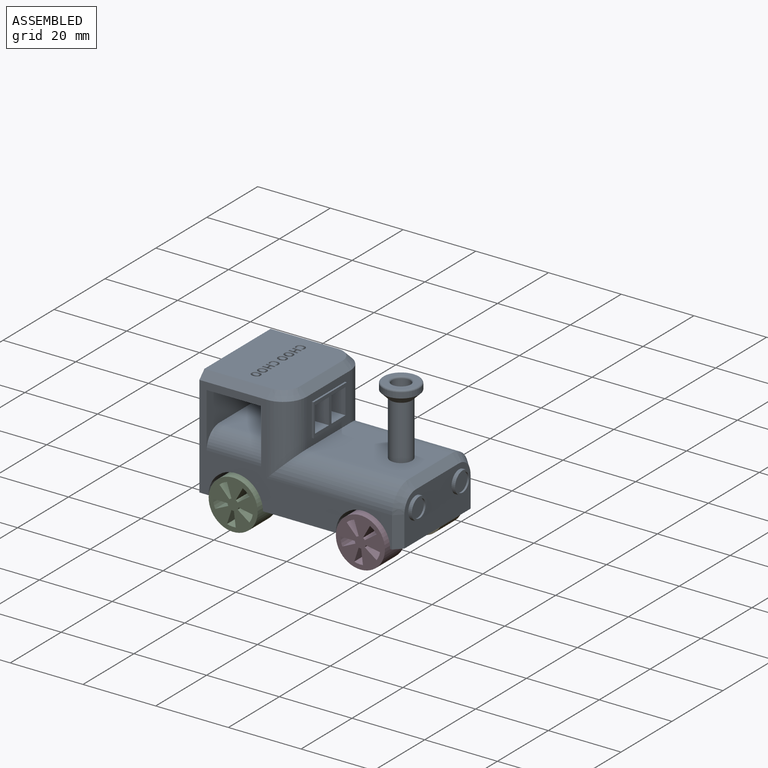
[diagram: assembled view]
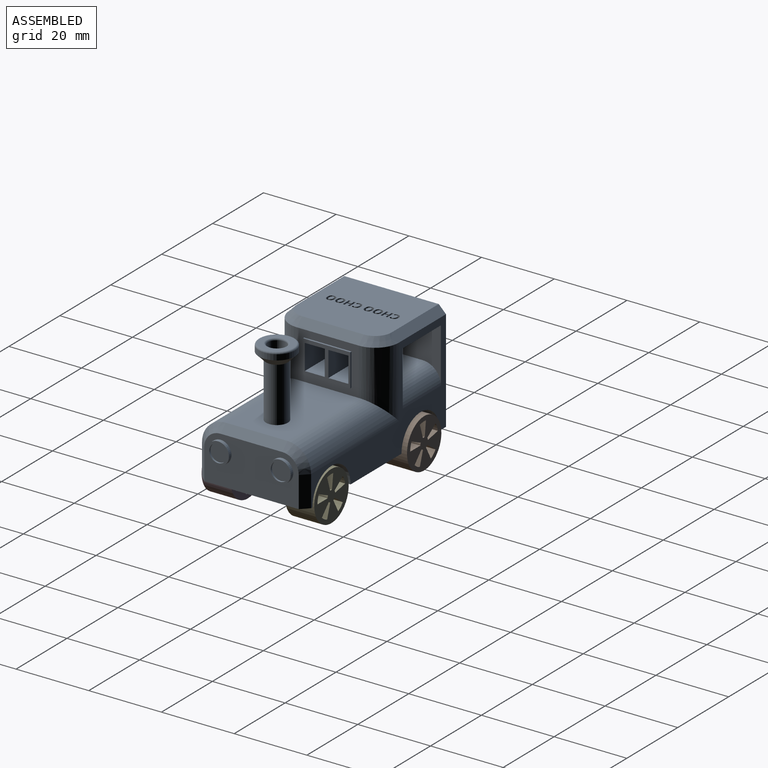
[diagram: assembled view, second angle]
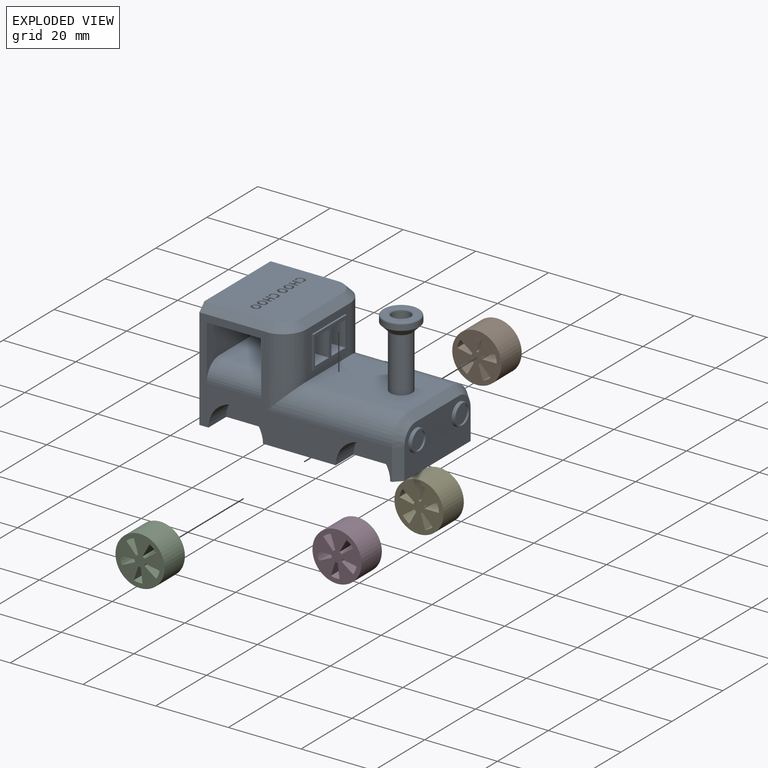
[diagram: exploded view]
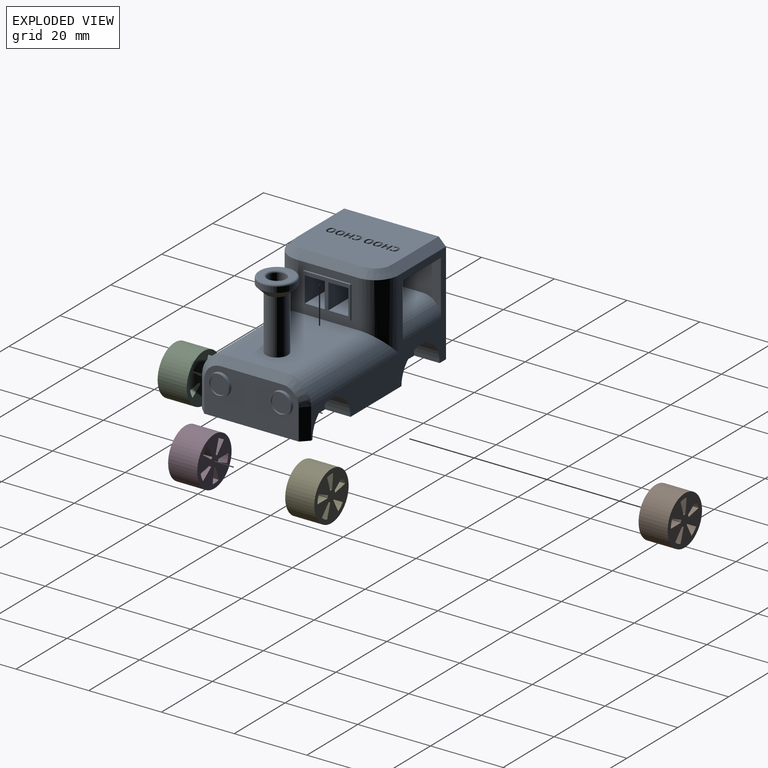
[diagram: exploded view, second angle]
ASSEMBLY  parts=5 mates=4
PART A: 153 faces, bbox 56x30x34 mm
  f0: plane 30x15mm, normal (-1,0,0), area 233.7mm2, adj f3,f4,f31,f33,f34,f35,f135,f136
  f1: plane 17x13mm, normal (1,0,0), area 104mm2, adj f8,f17,f20,f28,f132,f133,f134,f143
  f2: plane 26x23mm, normal (0,0,1), area 562.5mm2, adj f6,f26,f27,f28,f29,f30,f47,f48
  f3: plane 53x28mm, normal (0,-1,0), area 409.5mm2, adj f0,f5,f6,f13,f15,f17,f18,f25
  f4: plane 53x28mm, normal (0,1,0), area 409.5mm2, adj f0,f5,f6,f9,f11,f19,f20,f21
  f5: plane 55x30mm, normal (0,0,-1), area 1226mm2, adj f3,f4,f6,f7,f9,f10,f11,f12
  f6: plane 30x30mm, normal (-1,0,0), area 896mm2, adj f2,f3,f4,f5,f26,f30
  f7: plane 26x13mm, normal (1,0,0), area 272.8mm2, adj f5,f21,f22,f23,f24,f25,f36,f38
  f8: plane 28x17mm, normal (0,0,1), area 447.7mm2, adj f1,f18,f19,f23,f40
  f9: cylinder r=7.5mm len=15mm, axis (0,1,0), area 164.9mm2, adj f4,f5,f10
  f10: plane 15x7.5mm, normal (0,1,0), area 88.4mm2, adj f5,f9
  f11: cylinder r=7.5mm len=15mm, axis (0,1,0), area 164.9mm2, adj f4,f5,f12
  f12: plane 15x7.5mm, normal (0,1,0), area 88.4mm2, adj f5,f11
  f13: cylinder r=7.5mm len=15mm, axis (0,-1,0), area 164.9mm2, adj f3,f5,f14
  f14: plane 15x7.5mm, normal (0,-1,0), area 88.4mm2, adj f5,f13
  f15: cylinder r=7.5mm len=15mm, axis (0,-1,0), area 164.9mm2, adj f3,f5,f16
  f16: plane 15x7.5mm, normal (0,-1,0), area 88.4mm2, adj f5,f15
  f17: cylinder r=6.5mm len=19.5mm, axis (0,0,1), area 156.8mm2, adj f1,f3,f18,f29
  f18: cylinder r=6.5mm len=34.5mm, axis (-1,0,0), area 310mm2, adj f3,f8,f17,f24
  f19: cylinder r=6.5mm len=34.5mm, axis (1,0,0), area 310mm2, adj f4,f8,f20,f22
  f20: cylinder r=6.5mm len=19.5mm, axis (0,0,-1), area 156.8mm2, adj f1,f4,f19,f27
  f21: plane 8.5x2mm, normal (0.71,0.71,0), area 24mm2, adj f4,f5,f7,f22
  f22: cone r=4.5mm half-angle=45deg, axis (-1,0,0), area 24.4mm2, adj f7,f19,f21,f23
  f23: plane 17x2mm, normal (0.71,0,0.71), area 48.1mm2, adj f7,f8,f22,f24
  f24: cone r=4.5mm half-angle=45deg, axis (-1,0,0), area 24.4mm2, adj f7,f18,f23,f25
  f25: plane 8.5x2mm, normal (0.71,-0.71,0), area 24mm2, adj f3,f5,f7,f24
  f26: plane 18.5x2mm, normal (0,0.71,0.71), area 52.3mm2, adj f2,f4,f6,f27
  f27: cone r=4.5mm half-angle=45deg, axis (0,0,-1), area 24.4mm2, adj f2,f20,f26,f28
  f28: plane 17x2mm, normal (0.71,0,0.71), area 48.1mm2, adj f1,f2,f27,f29
  f29: cone r=4.5mm half-angle=45deg, axis (0,0,-1), area 24.4mm2, adj f2,f17,f28,f30
  f30: plane 18.5x2mm, normal (0,-0.71,0.71), area 52.3mm2, adj f2,f3,f6,f29
  f31: plane 20x15mm, normal (0,0,1), area 300mm2, adj f0,f32,f34,f35
  f32: plane 30x15mm, normal (1,0,0), area 310.7mm2, adj f3,f4,f31,f33,f34,f35
  f33: plane 30x15mm, normal (0,0,-1), area 450mm2, adj f0,f3,f4,f32
  f34: cylinder r=5mm len=15mm, axis (-1,0,0), area 117.8mm2, adj f0,f3,f31,f32
  f35: cylinder r=5mm len=15mm, axis (1,0,0), area 117.8mm2, adj f0,f4,f31,f32
  f36: cylinder r=3mm len=6mm, axis (-1,0,0), area 18.8mm2, adj f7,f37
  f37: plane 6x6mm, normal (1,0,0), area 8.6mm2, adj f36,f147
  f38: cylinder r=3mm len=6mm, axis (-1,0,0), area 18.8mm2, adj f7,f39
  f39: plane 6x6mm, normal (1,0,0), area 10mm2, adj f38,f145
  f40: cylinder r=3mm len=15mm, axis (0,0,-1), area 282.7mm2, adj f8,f43
  f41: cylinder r=5mm len=10mm, axis (0,0,-1), area 47.1mm2, adj f43,f152
  f42: plane 9x9mm, normal (0,0,1), area 35.3mm2, adj f151,f152
  f43: cone r=5mm half-angle=45deg, axis (0,0,1), area 71.1mm2, adj f40,f41
  f44: extruded ~2x0.83mm, area 2.3mm2, adj f45,f51,f52,f128
  f45: extruded ~2x0.84mm, area 2.3mm2, adj f44,f46,f52,f128
  f46: extruded ~2x0.84mm, area 2.3mm2, adj f45,f51,f52,f128
  f47: extruded ~2x1.24mm, area 3.7mm2, adj f2,f48,f50,f52
  f48: extruded ~2x1.26mm, area 3.7mm2, adj f2,f47,f49,f52
  f49: extruded ~2x1.26mm, area 3.7mm2, adj f2,f48,f50,f52
  f50: extruded ~2x1.24mm, area 3.7mm2, adj f2,f47,f49,f52
  f51: extruded ~2x0.83mm, area 2.3mm2, adj f44,f46,f52,f128
  f52: plane 2.5x2.16mm, normal (0,0,1), area 2.8mm2, adj f44,f45,f46,f47,f48,f49,f50,f51
  f53: plane 2x0.48mm, normal (-1,0,0), area 1mm2, adj f2,f54,f64,f65
  f54: plane 2.41x2mm, normal (0,-1,0), area 4.8mm2, adj f2,f53,f55,f65
  f55: plane 2x0.48mm, normal (1,0,0), area 1mm2, adj f2,f54,f56,f65
  f56: plane 2x1.04mm, normal (0,1,0), area 2.1mm2, adj f2,f55,f57,f65
  f57: plane 2x0.91mm, normal (1,0,0), area 1.8mm2, adj f2,f56,f58,f65
  f58: plane 2x1.04mm, normal (0,-1,0), area 2.1mm2, adj f2,f57,f59,f65
  f59: plane 2x0.48mm, normal (1,0,0), area 1mm2, adj f2,f58,f60,f65
  f60: plane 2.41x2mm, normal (0,1,0), area 4.8mm2, adj f2,f59,f61,f65
  f61: plane 2x0.48mm, normal (-1,0,0), area 1mm2, adj f2,f60,f62,f65
  f62: plane 2x0.95mm, normal (0,-1,0), area 1.9mm2, adj f2,f61,f63,f65
  f63: plane 2x0.91mm, normal (-1,0,0), area 1.8mm2, adj f2,f62,f64,f65
  f64: plane 2x0.95mm, normal (0,1,0), area 1.9mm2, adj f2,f53,f63,f65
  f65: plane 2.41x1.87mm, normal (0,0,1), area 2.7mm2, adj f53,f54,f55,f56,f57,f58,f59,f60
  f66: extruded ~2x1.26mm, area 3.8mm2, adj f2,f67,f75,f76
  f67: extruded ~2x1.24mm, area 3.7mm2, adj f2,f66,f68,f76
  f68: extruded ~2x0.77mm, area 1.8mm2, adj f2,f67,f69,f76
  f69: plane 2x0.3mm, normal (-0.65,0.76,0), area 0.8mm2, adj f2,f68,f70,f76
  f70: extruded ~2x0.5mm, area 1.1mm2, adj f2,f69,f71,f76
  f71: extruded ~2x0.84mm, area 2.4mm2, adj f2,f70,f72,f76
  f72: extruded ~2x0.83mm, area 2.3mm2, adj f2,f71,f73,f76
  f73: extruded ~2x0.44mm, area 1mm2, adj f2,f72,f74,f76
  f74: plane 2x0.31mm, normal (0.64,0.77,0), area 0.8mm2, adj f2,f73,f75,f76
  f75: extruded ~2x0.71mm, area 1.6mm2, adj f2,f66,f74,f76
  f76: plane 2.5x1.87mm, normal (0,0,1), area 2mm2, adj f66,f67,f68,f69,f70,f71,f72,f73
  f77: plane 2x0.48mm, normal (-1,0,0), area 1mm2, adj f2,f78,f88,f89
  f78: plane 2.41x2mm, normal (0,-1,0), area 4.8mm2, adj f2,f77,f79,f89
  f79: plane 2x0.48mm, normal (1,0,0), area 1mm2, adj f2,f78,f80,f89
  f80: plane 2x1.04mm, normal (0,1,0), area 2.1mm2, adj f2,f79,f81,f89
  f81: plane 2x0.91mm, normal (1,0,0), area 1.8mm2, adj f2,f80,f82,f89
  f82: plane 2x1.04mm, normal (0,-1,0), area 2.1mm2, adj f2,f81,f83,f89
  f83: plane 2x0.48mm, normal (1,0,0), area 1mm2, adj f2,f82,f84,f89
  f84: plane 2.41x2mm, normal (0,1,0), area 4.8mm2, adj f2,f83,f85,f89
  f85: plane 2x0.48mm, normal (-1,0,0), area 1mm2, adj f2,f84,f86,f89
  f86: plane 2x0.95mm, normal (0,-1,0), area 1.9mm2, adj f2,f85,f87,f89
  f87: plane 2x0.91mm, normal (-1,0,0), area 1.8mm2, adj f2,f86,f88,f89
  f88: plane 2x0.95mm, normal (0,1,0), area 1.9mm2, adj f2,f77,f87,f89
  f89: plane 2.41x1.87mm, normal (0,0,1), area 2.7mm2, adj f77,f78,f79,f80,f81,f82,f83,f84
  f90: extruded ~2x0.83mm, area 2.3mm2, adj f91,f97,f98,f129
  f91: extruded ~2x0.84mm, area 2.3mm2, adj f90,f92,f98,f129
  f92: extruded ~2x0.84mm, area 2.3mm2, adj f91,f97,f98,f129
  f93: extruded ~2x1.24mm, area 3.7mm2, adj f2,f94,f96,f98
  f94: extruded ~2x1.26mm, area 3.7mm2, adj f2,f93,f95,f98
  f95: extruded ~2x1.26mm, area 3.7mm2, adj f2,f94,f96,f98
  f96: extruded ~2x1.24mm, area 3.7mm2, adj f2,f93,f95,f98
  f97: extruded ~2x0.83mm, area 2.3mm2, adj f90,f92,f98,f129
  f98: plane 2.5x2.16mm, normal (0,0,1), area 2.8mm2, adj f90,f91,f92,f93,f94,f95,f96,f97
  f99: extruded ~2x0.83mm, area 2.3mm2, adj f100,f106,f107,f130
  f100: extruded ~2x0.84mm, area 2.3mm2, adj f99,f101,f107,f130
  f101: extruded ~2x0.84mm, area 2.3mm2, adj f100,f106,f107,f130
  f102: extruded ~2x1.24mm, area 3.7mm2, adj f2,f103,f105,f107
  f103: extruded ~2x1.26mm, area 3.7mm2, adj f2,f102,f104,f107
  f104: extruded ~2x1.26mm, area 3.7mm2, adj f2,f103,f105,f107
  f105: extruded ~2x1.24mm, area 3.7mm2, adj f2,f102,f104,f107
  f106: extruded ~2x0.83mm, area 2.3mm2, adj f99,f101,f107,f130
  f107: plane 2.5x2.16mm, normal (0,0,1), area 2.8mm2, adj f99,f100,f101,f102,f103,f104,f105,f106
  f108: extruded ~2x0.83mm, area 2.3mm2, adj f109,f115,f116,f131
  f109: extruded ~2x0.84mm, area 2.3mm2, adj f108,f110,f116,f131
  f110: extruded ~2x0.84mm, area 2.3mm2, adj f109,f115,f116,f131
  f111: extruded ~2x1.24mm, area 3.7mm2, adj f2,f112,f114,f116
  f112: extruded ~2x1.26mm, area 3.7mm2, adj f2,f111,f113,f116
  f113: extruded ~2x1.26mm, area 3.7mm2, adj f2,f112,f114,f116
  f114: extruded ~2x1.24mm, area 3.7mm2, adj f2,f111,f113,f116
  f115: extruded ~2x0.83mm, area 2.3mm2, adj f108,f110,f116,f131
  f116: plane 2.5x2.16mm, normal (0,0,1), area 2.8mm2, adj f108,f109,f110,f111,f112,f113,f114,f115
  f117: extruded ~2x1.26mm, area 3.8mm2, adj f2,f118,f126,f127
  f118: extruded ~2x1.24mm, area 3.7mm2, adj f2,f117,f119,f127
  f119: extruded ~2x0.77mm, area 1.8mm2, adj f2,f118,f120,f127
  f120: plane 2x0.3mm, normal (-0.65,0.76,0), area 0.8mm2, adj f2,f119,f121,f127
  f121: extruded ~2x0.5mm, area 1.1mm2, adj f2,f120,f122,f127
  f122: extruded ~2x0.84mm, area 2.4mm2, adj f2,f121,f123,f127
  f123: extruded ~2x0.83mm, area 2.3mm2, adj f2,f122,f124,f127
  f124: extruded ~2x0.44mm, area 1mm2, adj f2,f123,f125,f127
  f125: plane 2x0.31mm, normal (0.64,0.77,0), area 0.8mm2, adj f2,f124,f126,f127
  f126: extruded ~2x0.71mm, area 1.6mm2, adj f2,f117,f125,f127
  f127: plane 2.5x1.87mm, normal (0,0,1), area 2mm2, adj f117,f118,f119,f120,f121,f122,f123,f124
  f128: plane 1.67x1.17mm, normal (0,0,1), area 1.6mm2, adj f44,f45,f46,f51
  f129: plane 1.67x1.17mm, normal (0,0,1), area 1.6mm2, adj f90,f91,f92,f97
  f130: plane 1.67x1.17mm, normal (0,0,1), area 1.6mm2, adj f99,f100,f101,f106
  f131: plane 1.67x1.17mm, normal (0,0,1), area 1.6mm2, adj f108,f109,f110,f115
  f132: plane 9x0.5mm, normal (0,-1,0), area 4.5mm2, adj f1,f133,f143,f144
  f133: plane 13x0.5mm, normal (0,0,-1), area 6.5mm2, adj f1,f132,f134,f144
  f134: plane 9x0.5mm, normal (0,1,0), area 4.5mm2, adj f1,f133,f143,f144
  f135: plane 8.5x7mm, normal (0,1,0), area 59.5mm2, adj f0,f136,f141,f144
  f136: plane 8.5x5.5mm, normal (0,0,-1), area 46.8mm2, adj f0,f135,f137,f144
  f137: plane 8.5x7mm, normal (0,-1,0), area 59.5mm2, adj f0,f136,f141,f144
  f138: plane 8.5x7mm, normal (0,1,0), area 59.5mm2, adj f0,f139,f142,f144
  f139: plane 8.5x5.5mm, normal (0,0,-1), area 46.8mm2, adj f0,f138,f140,f144
  f140: plane 8.5x7mm, normal (0,-1,0), area 59.5mm2, adj f0,f139,f142,f144
  f141: plane 8.5x5.5mm, normal (0,0,1), area 46.8mm2, adj f0,f135,f137,f144
  f142: plane 8.5x5.5mm, normal (0,0,1), area 46.8mm2, adj f0,f138,f140,f144
  f143: plane 13x0.5mm, normal (0,0,1), area 6.5mm2, adj f1,f132,f134,f144
  f144: plane 13x9mm, normal (1,0,0), area 40mm2, adj f132,f133,f134,f135,f136,f137,f138,f139
  f145: cylinder r=2.41mm len=4.82mm, axis (1,0,0), area 7.6mm2, adj f39,f146
  f146: plane 4.82x4.82mm, normal (1,0,0), area 18.2mm2, adj f145
  f147: cylinder r=2.5mm len=5mm, axis (1,0,0), area 7.9mm2, adj f37,f148
  f148: plane 5x5mm, normal (1,0,0), area 19.6mm2, adj f147
  f149: cylinder r=2.5mm len=5mm, axis (0,0,1), area 39.3mm2, adj f150,f151
  f150: plane 5x5mm, normal (0,0,1), area 19.6mm2, adj f149
  f151: torus R=3mm, axis (0,0,1), area 13.2mm2, adj f42,f149
  f152: torus R=4.5mm, axis (0,0,1), area 23.8mm2, adj f41,f42
PART B: 23 faces, bbox 8x13.5x13.5 mm
  f0: plane 13.5x13.5mm, normal (1,0,0), area 112.1mm2, adj f2,f3,f4,f5,f6,f7,f8,f9
  f1: plane 13.5x13.5mm, normal (-1,0,0), area 112.1mm2, adj f2,f3,f4,f5,f6,f7,f8,f9
  f2: cylinder r=6.75mm len=13.5mm, axis (-1,0,0), area 339.3mm2, adj f0,f1
  f3: plane 8x3.8mm, normal (0,0.31,0.95), area 32mm2, adj f0,f1,f4,f6
  f4: cylinder r=1.5mm len=8mm, axis (1,0,0), area 5.4mm2, adj f0,f1,f3,f5
  f5: plane 8x2.93mm, normal (0,-0.68,-0.73), area 32mm2, adj f0,f1,f4,f6
  f6: cylinder r=5.5mm len=8mm, axis (1,0,0), area 19.4mm2, adj f0,f1,f3,f5
  f7: plane 8x3.24mm, normal (0,-0.81,0.59), area 32mm2, adj f0,f1,f8,f10
  f8: cylinder r=1.5mm len=8mm, axis (1,0,0), area 5.4mm2, adj f0,f1,f7,f9
  f9: plane 8x3.5mm, normal (0,0.48,-0.87), area 32mm2, adj f0,f1,f8,f10
  f10: cylinder r=5.5mm len=8mm, axis (1,0,0), area 19.4mm2, adj f0,f1,f7,f9
  f11: plane 8x3.24mm, normal (0,-0.81,-0.59), area 32mm2, adj f0,f1,f12,f14
  f12: cylinder r=1.5mm len=8mm, axis (1,0,0), area 5.4mm2, adj f0,f1,f11,f13
  f13: plane 8x3.93mm, normal (0,0.98,0.19), area 32mm2, adj f0,f1,f12,f14
  f14: cylinder r=5.5mm len=8mm, axis (1,0,0), area 19.4mm2, adj f0,f1,f11,f13
  f15: cylinder r=1.5mm len=8mm, axis (1,0,0), area 5.4mm2, adj f0,f1,f16,f18
  f16: plane 8x3.63mm, normal (0,-0.91,0.42), area 32mm2, adj f0,f1,f15,f17
  f17: cylinder r=5.5mm len=8mm, axis (1,0,0), area 19.4mm2, adj f0,f1,f16,f18
  f18: plane 8x4mm, normal (0,1,0), area 32mm2, adj f0,f1,f15,f17
  f19: plane 8x3.8mm, normal (0,0.31,-0.95), area 32mm2, adj f0,f1,f20,f22
  f20: cylinder r=1.5mm len=8mm, axis (1,0,0), area 5.4mm2, adj f0,f1,f19,f21
  f21: plane 8x3.97mm, normal (0,0.12,0.99), area 32mm2, adj f0,f1,f20,f22
  f22: cylinder r=5.5mm len=8mm, axis (1,0,0), area 19.4mm2, adj f0,f1,f19,f21
PART C: same geometry as B
PART D: same geometry as B
PART E: same geometry as B
PLACE A at identity
PLACE B rot(axis=(0.58,0.58,0.58),120deg) t=(-17.5,8,0)mm
PLACE C rot(axis=(-0.58,-0.58,0.58),120deg) t=(-17.5,-16,0)mm
PLACE D rot(axis=(-0.58,-0.58,0.58),120deg) t=(17.5,-16,0)mm
PLACE E rot(axis=(0.58,0.58,0.58),120deg) t=(17.5,7,0)mm
MATE fastened C.f2 <-> A.f9  axis (0,1,0) through (-17.5,-8,0)mm
MATE fastened E.f2 <-> A.f11  axis (0,1,0) through (17.5,15,0)mm
MATE fastened D.f2 <-> A.f11  axis (0,1,0) through (17.5,-8,0)mm
MATE fastened B.f2 <-> A.f9  axis (0,-1,0) through (-17.5,8,0)mm
